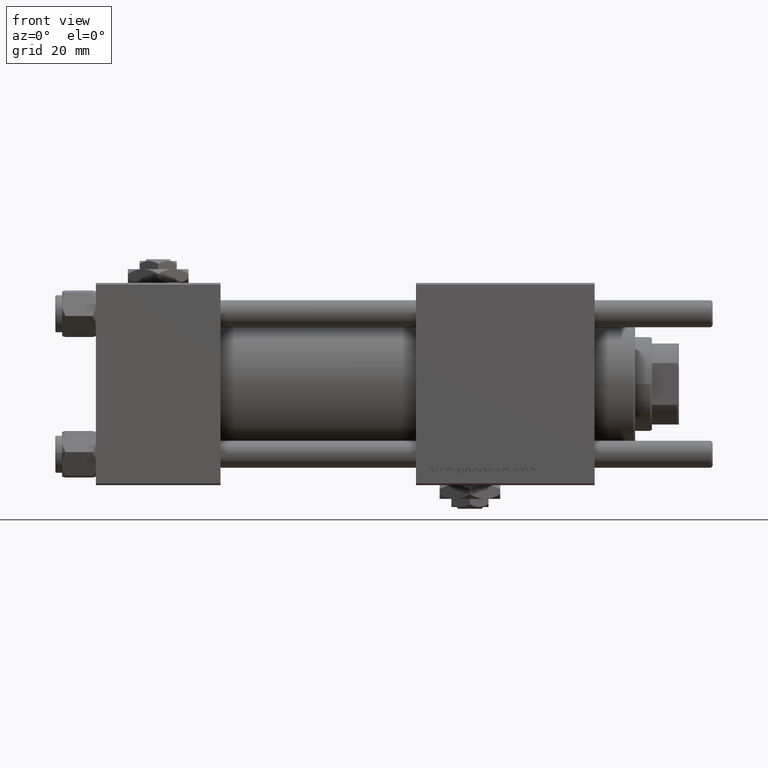
[diagram: clean part render]
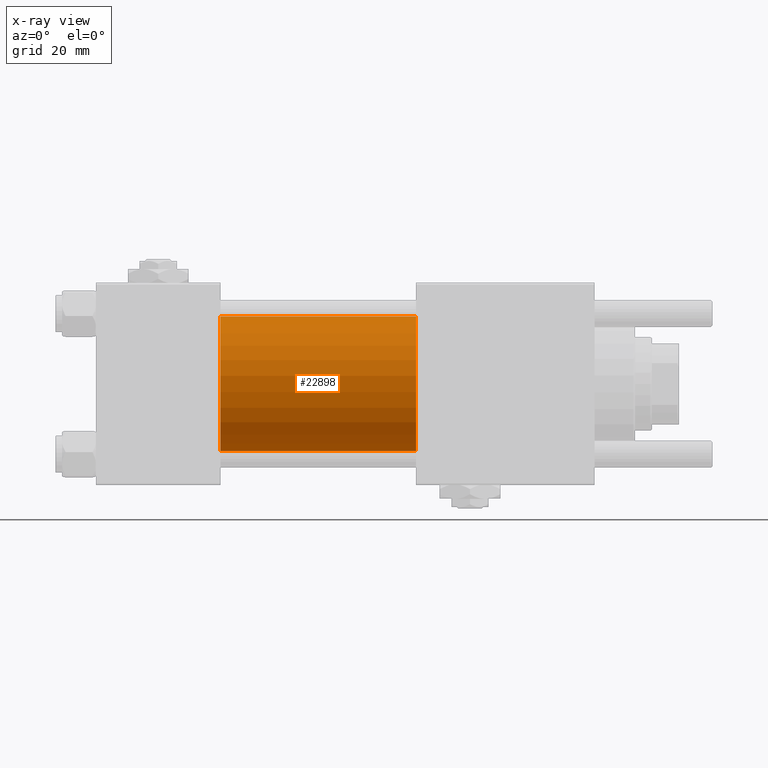
[diagram: x-ray — body ghosted, one internal face saturated and labeled with its STEP entity id]
A machine part, front view, then the same camera in x-ray: the body is ghosted and one INTERNAL B-rep face — a face not visible from any outside direction — is saturated and labeled: STEP entity #22898.
In plain terms, the highlighted cylindrical surface (partial cylindrical patch) has radius 20 mm, axis along (-1, -0, -0).
Its self-contained STEP definition (entity closure, byte-faithful):
#235 = CARTESIAN_POINT ( 'NONE',  ( 37.00000000000000000, -2.602085213965210642E-15, 20.00000000000000000 ) ) ;
#1665 = EDGE_CURVE ( 'NONE', #35001, #37371, #53474, .T. ) ;
#6010 = ORIENTED_EDGE ( 'NONE', *, *, #15218, .F. ) ;
#7004 = EDGE_CURVE ( 'NONE', #32065, #50181, #51024, .T. ) ;
#11532 = DIRECTION ( 'NONE',  ( 0.000000000000000000, 0.000000000000000000, -1.000000000000000000 ) ) ;
#15105 = CYLINDRICAL_SURFACE ( 'NONE', #25602, 20.00000000000000000 ) ;
#15218 = EDGE_CURVE ( 'NONE', #37371, #50181, #35848, .T. ) ;
#15491 = EDGE_CURVE ( 'NONE', #35001, #32065, #24427, .T. ) ;
#16500 = DIRECTION ( 'NONE',  ( -1.000000000000000000, -0.000000000000000000, -0.000000000000000000 ) ) ;
#18501 = CARTESIAN_POINT ( 'NONE',  ( 95.00000000000000000, -1.527916156705046464E-16, -20.00000000000000000 ) ) ;
#20034 = VECTOR ( 'NONE', #42083, 1000.000000000000000 ) ;
#21145 = DIRECTION ( 'NONE',  ( 1.000000000000000000, 0.000000000000000000, 0.000000000000000000 ) ) ;
#21274 = CARTESIAN_POINT ( 'NONE',  ( 95.00000000000000000, -2.602085213965210642E-15, 20.00000000000000000 ) ) ;
#22898 = ADVANCED_FACE ( 'NONE', ( #42873 ), #15105, .F. ) ;
#24427 = CIRCLE ( 'NONE', #49156, 20.00000000000000000 ) ;
#25122 = ORIENTED_EDGE ( 'NONE', *, *, #7004, .T. ) ;
#25602 = AXIS2_PLACEMENT_3D ( 'NONE', #38966, #29435, #55986 ) ;
#28466 = CARTESIAN_POINT ( 'NONE',  ( 37.00000000000000000, -1.527916156705046464E-16, -20.00000000000000000 ) ) ;
#29171 = CARTESIAN_POINT ( 'NONE',  ( 95.00000000000000000, -2.602085213965210642E-15, 0.000000000000000000 ) ) ;
#29435 = DIRECTION ( 'NONE',  ( -1.000000000000000000, -0.000000000000000000, -0.000000000000000000 ) ) ;
#29813 = CARTESIAN_POINT ( 'NONE',  ( 37.00000000000000000, -2.602085213965210642E-15, 0.000000000000000000 ) ) ;
#31945 = CARTESIAN_POINT ( 'NONE',  ( 95.00000000000000000, -1.527916156705046464E-16, -20.00000000000000000 ) ) ;
#32065 = VERTEX_POINT ( 'NONE', #18501 ) ;
#35001 = VERTEX_POINT ( 'NONE', #58555 ) ;
#35848 = CIRCLE ( 'NONE', #42544, 20.00000000000000000 ) ;
#37371 = VERTEX_POINT ( 'NONE', #235 ) ;
#37502 = EDGE_LOOP ( 'NONE', ( #41938, #25122, #6010, #39701 ) ) ;
#38966 = CARTESIAN_POINT ( 'NONE',  ( 95.00000000000000000, -2.602085213965210642E-15, 0.000000000000000000 ) ) ;
#38987 = DIRECTION ( 'NONE',  ( 1.000000000000000000, 0.000000000000000000, 0.000000000000000000 ) ) ;
#39701 = ORIENTED_EDGE ( 'NONE', *, *, #1665, .F. ) ;
#41938 = ORIENTED_EDGE ( 'NONE', *, *, #15491, .T. ) ;
#42083 = DIRECTION ( 'NONE',  ( -1.000000000000000000, -0.000000000000000000, -0.000000000000000000 ) ) ;
#42544 = AXIS2_PLACEMENT_3D ( 'NONE', #29813, #21145, #51609 ) ;
#42873 = FACE_OUTER_BOUND ( 'NONE', #37502, .T. ) ;
#49156 = AXIS2_PLACEMENT_3D ( 'NONE', #29171, #38987, #11532 ) ;
#50181 = VERTEX_POINT ( 'NONE', #28466 ) ;
#51024 = LINE ( 'NONE', #31945, #20034 ) ;
#51609 = DIRECTION ( 'NONE',  ( 0.000000000000000000, 0.000000000000000000, -1.000000000000000000 ) ) ;
#53474 = LINE ( 'NONE', #21274, #55200 ) ;
#55200 = VECTOR ( 'NONE', #16500, 1000.000000000000000 ) ;
#55986 = DIRECTION ( 'NONE',  ( 0.000000000000000000, 0.000000000000000000, 1.000000000000000000 ) ) ;
#58555 = CARTESIAN_POINT ( 'NONE',  ( 95.00000000000000000, -2.602085213965210642E-15, 20.00000000000000000 ) ) ;